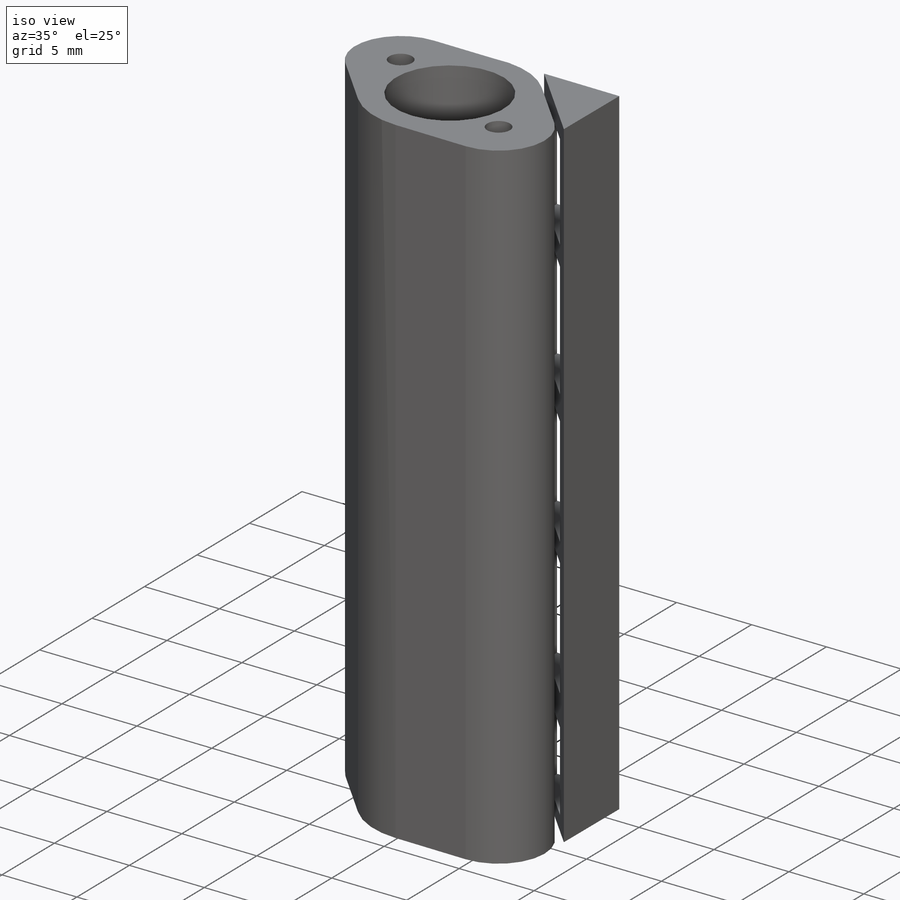
[diagram: iso view]
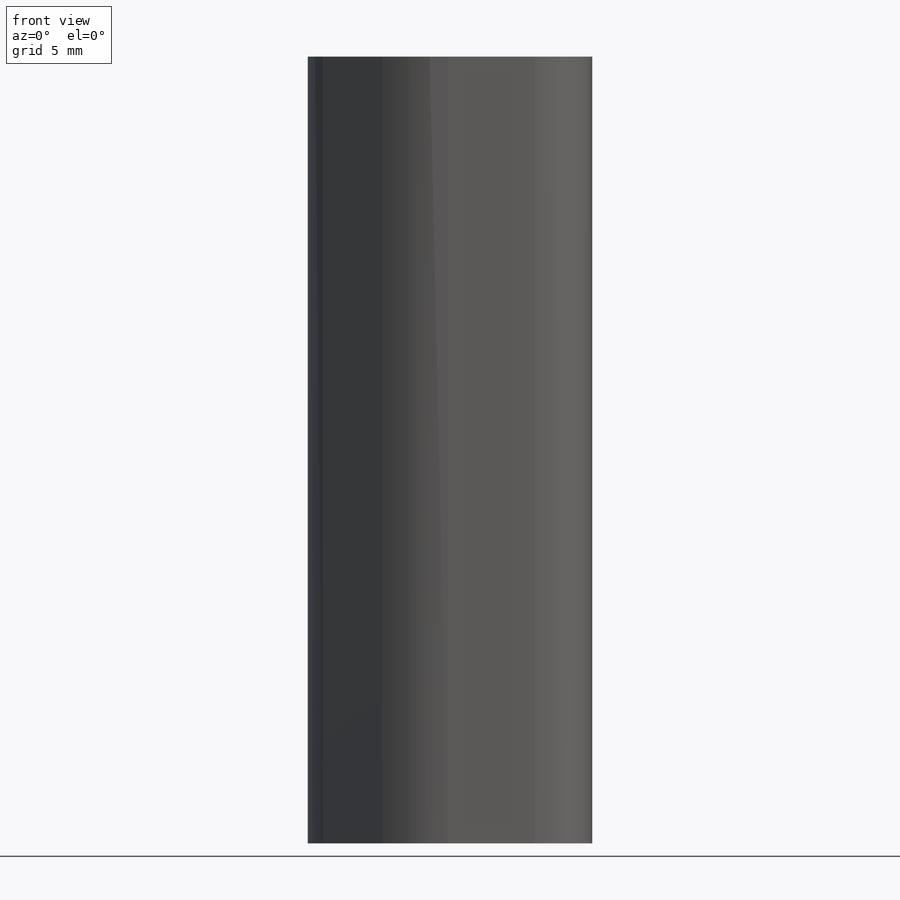
[diagram: front view]
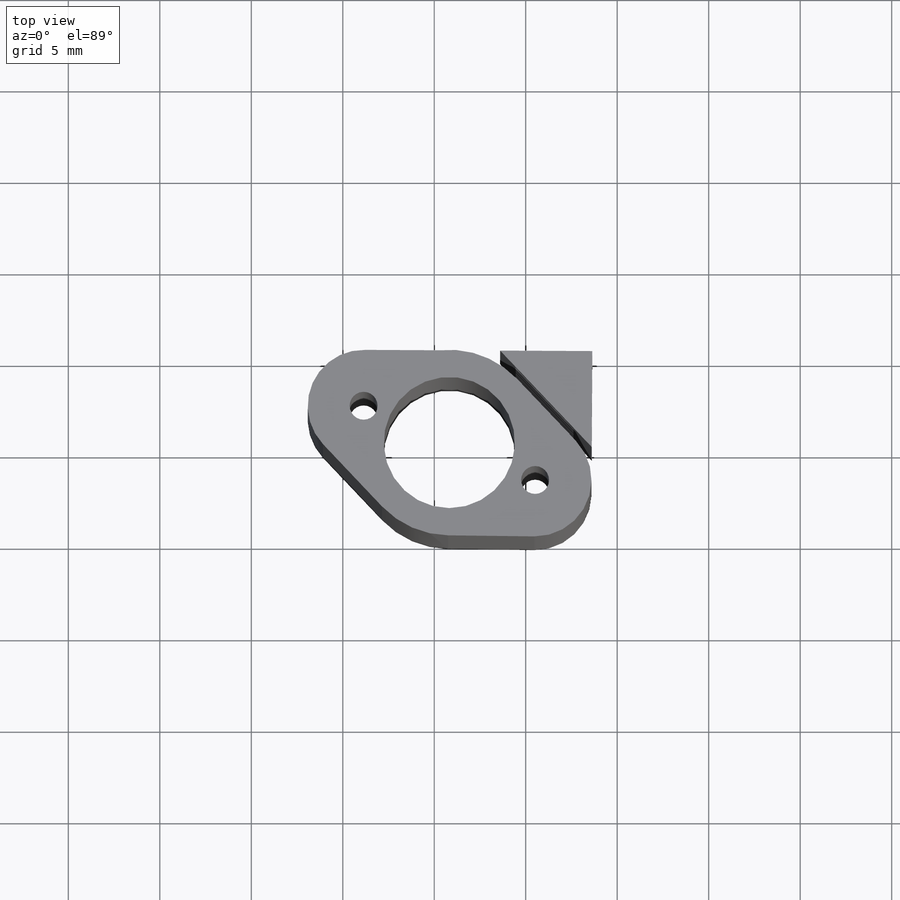
[diagram: top view]
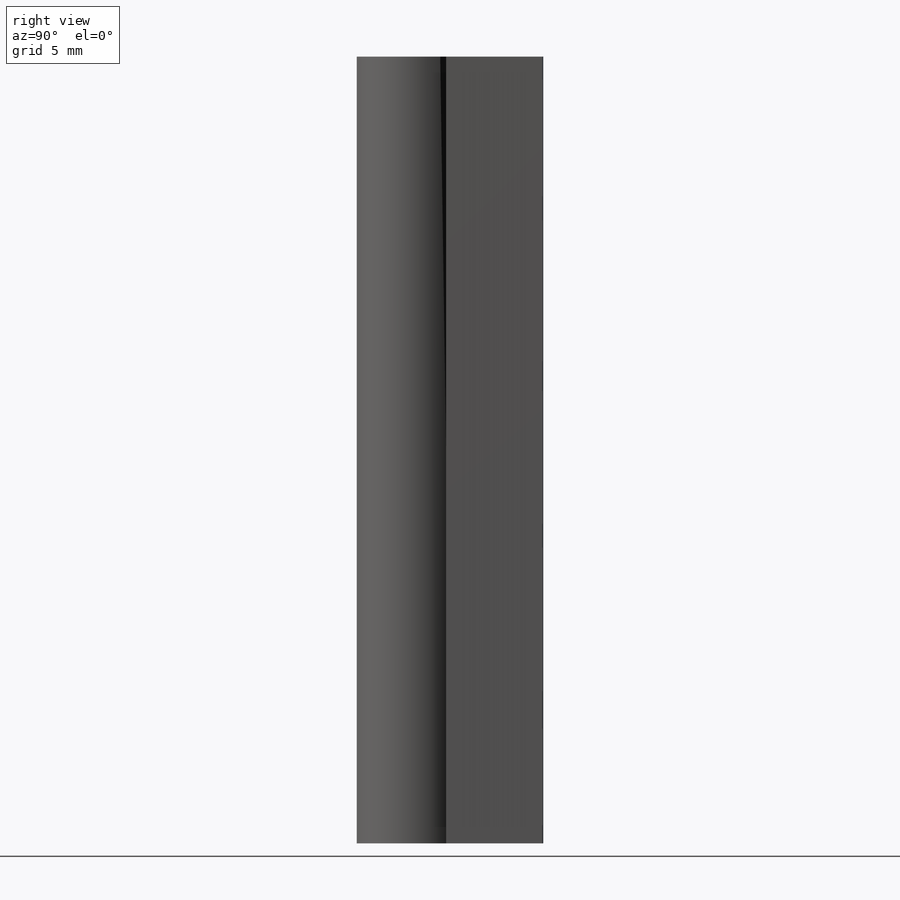
[diagram: right view]
SOLIDWORKS PART (.sldprt)
format: sldprt  version: not decoded by parser v0  size: 208,384 bytes
history: native  units: mm
features: plane x4, sketch x3, extrude x2, material x1, cut_extrude x1 (+10 scaffold rows collapsed)
feature tree (21):
  scaffold x10  (default folders/planes/origin — collapsed)
  material  "Material <sin especificar>"
  plane  "Alzado"
  plane  "Planta"
  plane  "Vista lateral"
  sketch  "Croquis1"  dims[D2=1.0mm D1=0.2mm]
  extrude  "Main"  Depth=50mm
  plane  " Plano base"  Offset=0mm
  sketch  "Croquis9"  dims[D1=1.0mm]
  extrude  "Soporte impresión"  Depth=0.4mm
  sketch  "Croquis10"  dims[D1=7.0mm]
  cut_extrude  "Ajuste de longitud"  Depth=20mm
decode coverage: 6 of 6 modeling features carry decoded parameters
note: suppression state not decoded; provenance and decode notes live in map.json
